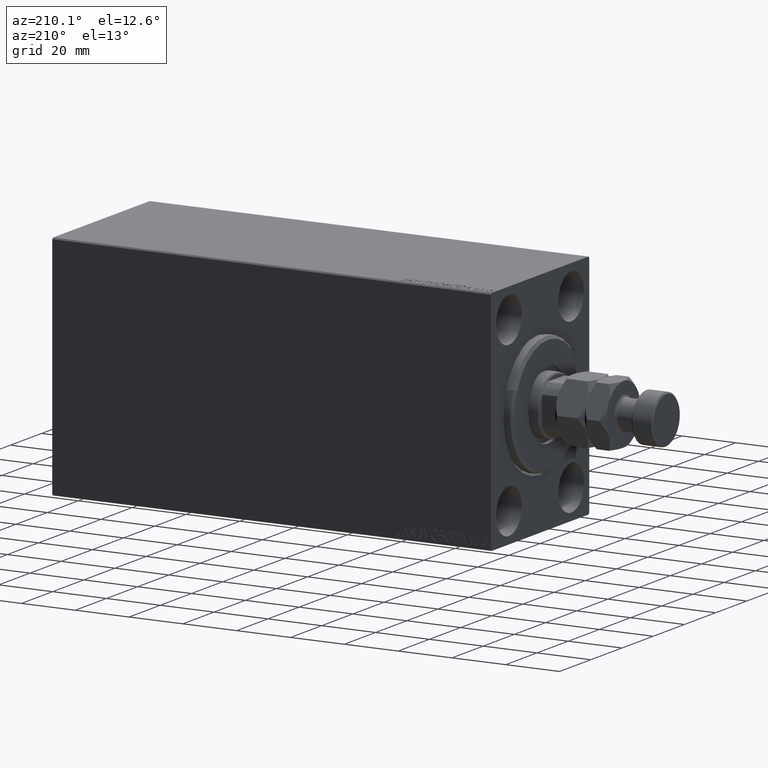
[diagram: clean part render]
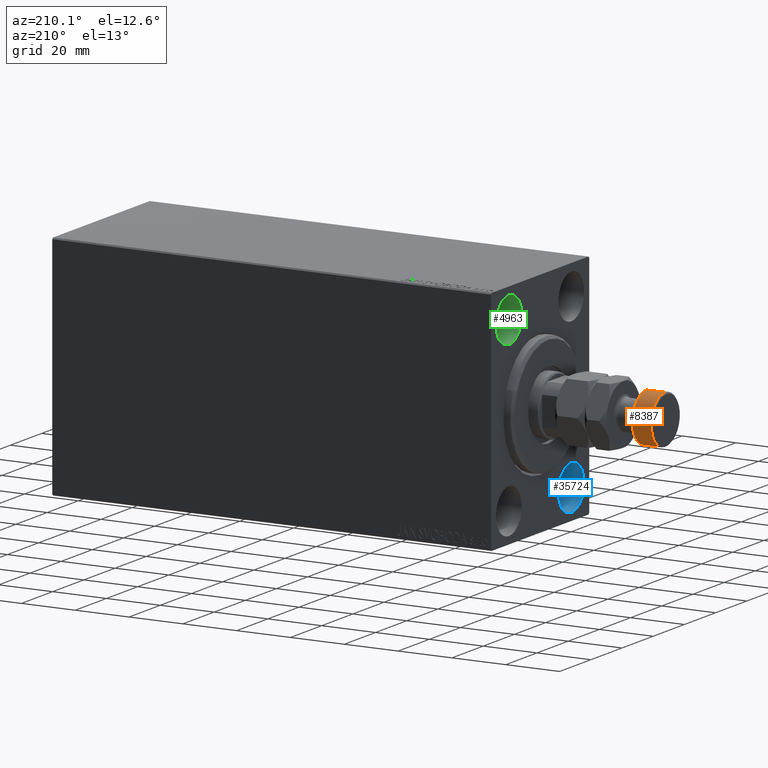
[diagram: same view with three faces highlighted in distinct colors, each labeled with its STEP entity id]
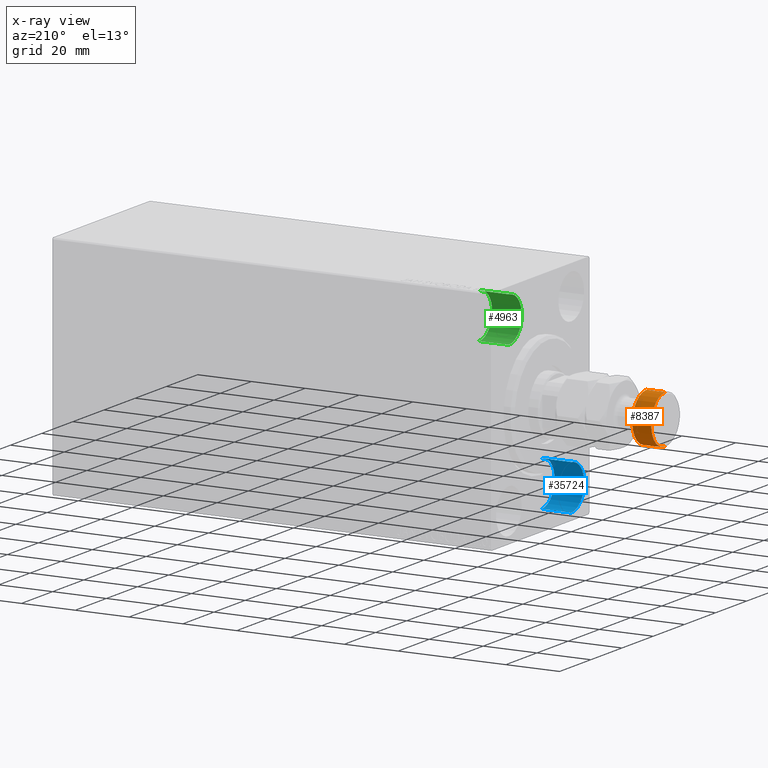
[diagram: x-ray of the same camera — body ghosted, the three highlighted faces saturated]
A machine part, auxiliary view with three faces highlighted in distinct colors.
The next image is the same camera in x-ray (body ghosted, the three faces saturated) — at least one of them is partly hidden behind the body in this view.
Their STEP definitions:

[orange] entity #8387 — the highlighted cylindrical surface (edge-blend (fillet) strip) has radius 9 mm, axis along (1, -0, -0).
#800 = CIRCLE ( 'NONE', #19878, 9.000000000000000000 ) ;
#1603 = DIRECTION ( 'NONE',  ( -0.000000000000000000, -0.000000000000000000, -1.000000000000000000 ) ) ;
#1997 = CARTESIAN_POINT ( 'NONE',  ( -9.000000000000000000, 0.000000000000000000, 27.50000000000000000 ) ) ;
#2049 = FACE_OUTER_BOUND ( 'NONE', #35468, .T. ) ;
#4708 = EDGE_CURVE ( 'NONE', #24727, #10489, #30156, .T. ) ;
#6274 = ORIENTED_EDGE ( 'NONE', *, *, #35397, .T. ) ;
#6362 = CARTESIAN_POINT ( 'NONE',  ( -9.000000000000000000, 0.000000000000000000, 34.49999999999999289 ) ) ;
#8387 = ADVANCED_FACE ( 'NONE', ( #2049 ), #8728, .T. ) ;
#8728 = CYLINDRICAL_SURFACE ( 'NONE', #29221, 9.000000000000000000 ) ;
#10489 = VERTEX_POINT ( 'NONE', #32377 ) ;
#11399 = DIRECTION ( 'NONE',  ( -0.000000000000000000, -0.000000000000000000, -1.000000000000000000 ) ) ;
#13386 = ORIENTED_EDGE ( 'NONE', *, *, #38268, .F. ) ;
#14846 = LINE ( 'NONE', #28640, #22840 ) ;
#16367 = DIRECTION ( 'NONE',  ( -0.000000000000000000, -0.000000000000000000, -1.000000000000000000 ) ) ;
#19819 = CARTESIAN_POINT ( 'NONE',  ( 9.000000000000000000, 1.102182119232617714E-15, 35.00000000000000000 ) ) ;
#19878 = AXIS2_PLACEMENT_3D ( 'NONE', #44526, #44082, #26641 ) ;
#22572 = CARTESIAN_POINT ( 'NONE',  ( 9.000000000000000000, 1.102182119232617714E-15, 34.49999999999999289 ) ) ;
#22840 = VECTOR ( 'NONE', #11399, 1000.000000000000000 ) ;
#23482 = CIRCLE ( 'NONE', #42530, 9.000000000000000000 ) ;
#24727 = VERTEX_POINT ( 'NONE', #22572 ) ;
#25682 = DIRECTION ( 'NONE',  ( 0.000000000000000000, 0.000000000000000000, -1.000000000000000000 ) ) ;
#25713 = CARTESIAN_POINT ( 'NONE',  ( 0.000000000000000000, 0.000000000000000000, 35.00000000000000000 ) ) ;
#25914 = DIRECTION ( 'NONE',  ( 1.000000000000000000, 0.000000000000000000, 0.000000000000000000 ) ) ;
#26641 = DIRECTION ( 'NONE',  ( 1.000000000000000000, 0.000000000000000000, 0.000000000000000000 ) ) ;
#28640 = CARTESIAN_POINT ( 'NONE',  ( -9.000000000000000000, 0.000000000000000000, 35.00000000000000000 ) ) ;
#29221 = AXIS2_PLACEMENT_3D ( 'NONE', #25713, #1603, #32576 ) ;
#30156 = LINE ( 'NONE', #19819, #40078 ) ;
#32377 = CARTESIAN_POINT ( 'NONE',  ( 9.000000000000000000, 1.102182119232617714E-15, 27.50000000000000000 ) ) ;
#32576 = DIRECTION ( 'NONE',  ( -1.000000000000000000, 0.000000000000000000, 0.000000000000000000 ) ) ;
#32730 = ORIENTED_EDGE ( 'NONE', *, *, #4708, .T. ) ;
#33235 = CARTESIAN_POINT ( 'NONE',  ( 0.000000000000000000, 0.000000000000000000, 34.49999999999999289 ) ) ;
#33569 = VERTEX_POINT ( 'NONE', #6362 ) ;
#35397 = EDGE_CURVE ( 'NONE', #33569, #24727, #23482, .T. ) ;
#35468 = EDGE_LOOP ( 'NONE', ( #6274, #32730, #35693, #13386 ) ) ;
#35693 = ORIENTED_EDGE ( 'NONE', *, *, #37022, .T. ) ;
#37022 = EDGE_CURVE ( 'NONE', #10489, #42042, #800, .T. ) ;
#38268 = EDGE_CURVE ( 'NONE', #33569, #42042, #14846, .T. ) ;
#40078 = VECTOR ( 'NONE', #16367, 1000.000000000000000 ) ;
#42042 = VERTEX_POINT ( 'NONE', #1997 ) ;
#42530 = AXIS2_PLACEMENT_3D ( 'NONE', #33235, #25682, #25914 ) ;
#44082 = DIRECTION ( 'NONE',  ( -0.000000000000000000, -0.000000000000000000, 1.000000000000000000 ) ) ;
#44526 = CARTESIAN_POINT ( 'NONE',  ( 0.000000000000000000, 0.000000000000000000, 27.50000000000000000 ) ) ;

[blue] entity #35724 — the highlighted cylindrical surface (edge-blend (fillet) strip) has radius 8.25 mm, axis along (-1, -0, -0).
#1168 = EDGE_CURVE ( 'NONE', #21040, #30786, #1617, .T. ) ;
#1617 = LINE ( 'NONE', #36479, #5525 ) ;
#1655 = EDGE_CURVE ( 'NONE', #26164, #30786, #18755, .T. ) ;
#1971 = CARTESIAN_POINT ( 'NONE',  ( 11.00000000000000000, -20.00000000000000355, -31.49999999999999289 ) ) ;
#2656 = ORIENTED_EDGE ( 'NONE', *, *, #8912, .F. ) ;
#4097 = AXIS2_PLACEMENT_3D ( 'NONE', #22111, #39758, #36082 ) ;
#5525 = VECTOR ( 'NONE', #33053, 1000.000000000000000 ) ;
#6422 = VECTOR ( 'NONE', #17908, 1000.000000000000000 ) ;
#8912 = EDGE_CURVE ( 'NONE', #33906, #21040, #40922, .T. ) ;
#11473 = LINE ( 'NONE', #34888, #6422 ) ;
#13302 = CARTESIAN_POINT ( 'NONE',  ( 0.000000000000000000, -20.00000000000000355, -23.24999999999999289 ) ) ;
#13516 = CARTESIAN_POINT ( 'NONE',  ( 11.00000000000000000, -20.00000000000000355, -31.49999999999999289 ) ) ;
#14626 = CARTESIAN_POINT ( 'NONE',  ( 0.000000000000000000, -20.00000000000000355, -39.74999999999999289 ) ) ;
#15416 = AXIS2_PLACEMENT_3D ( 'NONE', #1971, #37062, #29979 ) ;
#17908 = DIRECTION ( 'NONE',  ( -1.000000000000000000, -0.000000000000000000, -0.000000000000000000 ) ) ;
#18755 = CIRCLE ( 'NONE', #4097, 8.250000000000000000 ) ;
#19851 = CARTESIAN_POINT ( 'NONE',  ( 11.00000000000000000, -20.00000000000000355, -39.74999999999999289 ) ) ;
#20252 = ORIENTED_EDGE ( 'NONE', *, *, #22807, .T. ) ;
#21040 = VERTEX_POINT ( 'NONE', #28491 ) ;
#22111 = CARTESIAN_POINT ( 'NONE',  ( 0.000000000000000000, -20.00000000000000355, -31.49999999999999289 ) ) ;
#22404 = FACE_OUTER_BOUND ( 'NONE', #27892, .T. ) ;
#22807 = EDGE_CURVE ( 'NONE', #33906, #26164, #11473, .T. ) ;
#26164 = VERTEX_POINT ( 'NONE', #14626 ) ;
#26536 = CYLINDRICAL_SURFACE ( 'NONE', #15416, 8.250000000000000000 ) ;
#27312 = DIRECTION ( 'NONE',  ( 0.000000000000000000, 0.000000000000000000, 1.000000000000000000 ) ) ;
#27892 = EDGE_LOOP ( 'NONE', ( #2656, #20252, #36979, #40651 ) ) ;
#28491 = CARTESIAN_POINT ( 'NONE',  ( 11.00000000000000000, -20.00000000000000355, -23.24999999999999289 ) ) ;
#29979 = DIRECTION ( 'NONE',  ( 0.000000000000000000, 0.000000000000000000, 1.000000000000000000 ) ) ;
#30786 = VERTEX_POINT ( 'NONE', #13302 ) ;
#33053 = DIRECTION ( 'NONE',  ( -1.000000000000000000, -0.000000000000000000, -0.000000000000000000 ) ) ;
#33906 = VERTEX_POINT ( 'NONE', #19851 ) ;
#34888 = CARTESIAN_POINT ( 'NONE',  ( 11.00000000000000000, -20.00000000000000355, -39.74999999999999289 ) ) ;
#35724 = ADVANCED_FACE ( 'NONE', ( #22404 ), #26536, .F. ) ;
#36082 = DIRECTION ( 'NONE',  ( 0.000000000000000000, 0.000000000000000000, 1.000000000000000000 ) ) ;
#36479 = CARTESIAN_POINT ( 'NONE',  ( 11.00000000000000000, -20.00000000000000355, -23.24999999999999289 ) ) ;
#36979 = ORIENTED_EDGE ( 'NONE', *, *, #1655, .T. ) ;
#37062 = DIRECTION ( 'NONE',  ( -1.000000000000000000, -0.000000000000000000, -0.000000000000000000 ) ) ;
#39758 = DIRECTION ( 'NONE',  ( -1.000000000000000000, 0.000000000000000000, 0.000000000000000000 ) ) ;
#40651 = ORIENTED_EDGE ( 'NONE', *, *, #1168, .F. ) ;
#40885 = AXIS2_PLACEMENT_3D ( 'NONE', #13516, #45421, #27312 ) ;
#40922 = CIRCLE ( 'NONE', #40885, 8.250000000000000000 ) ;
#45421 = DIRECTION ( 'NONE',  ( -1.000000000000000000, 0.000000000000000000, 0.000000000000000000 ) ) ;

[green] entity #4963 — the highlighted cylindrical surface (edge-blend (fillet) strip) has radius 8.25 mm, axis along (-1, -0, -0).
#723 = DIRECTION ( 'NONE',  ( 0.000000000000000000, 0.000000000000000000, 1.000000000000000000 ) ) ;
#889 = CIRCLE ( 'NONE', #15549, 8.249999999999992895 ) ;
#2414 = CARTESIAN_POINT ( 'NONE',  ( 11.00000000000000000, 20.00000000000000355, 23.25000000000000355 ) ) ;
#2597 = DIRECTION ( 'NONE',  ( -1.000000000000000000, -0.000000000000000000, -0.000000000000000000 ) ) ;
#2711 = DIRECTION ( 'NONE',  ( -1.000000000000000000, -0.000000000000000000, -0.000000000000000000 ) ) ;
#2843 = VECTOR ( 'NONE', #2597, 1000.000000000000000 ) ;
#3938 = CARTESIAN_POINT ( 'NONE',  ( 11.00000000000000000, 20.00000000000000355, 31.50000000000000000 ) ) ;
#4963 = ADVANCED_FACE ( 'NONE', ( #10830 ), #7621, .F. ) ;
#5510 = CARTESIAN_POINT ( 'NONE',  ( 0.000000000000000000, 20.00000000000000355, 31.50000000000000000 ) ) ;
#6256 = VERTEX_POINT ( 'NONE', #40290 ) ;
#7621 = CYLINDRICAL_SURFACE ( 'NONE', #33489, 8.249999999999992895 ) ;
#10830 = FACE_OUTER_BOUND ( 'NONE', #11734, .T. ) ;
#11226 = CARTESIAN_POINT ( 'NONE',  ( 11.00000000000000000, 20.00000000000000355, 39.74999999999999289 ) ) ;
#11734 = EDGE_LOOP ( 'NONE', ( #29473, #44701, #39783, #13144 ) ) ;
#13144 = ORIENTED_EDGE ( 'NONE', *, *, #26487, .F. ) ;
#15549 = AXIS2_PLACEMENT_3D ( 'NONE', #5510, #22267, #36238 ) ;
#16372 = LINE ( 'NONE', #34031, #2843 ) ;
#16908 = VERTEX_POINT ( 'NONE', #17036 ) ;
#17036 = CARTESIAN_POINT ( 'NONE',  ( 0.000000000000000000, 20.00000000000000355, 23.25000000000000355 ) ) ;
#21211 = CIRCLE ( 'NONE', #23415, 8.249999999999992895 ) ;
#22267 = DIRECTION ( 'NONE',  ( -1.000000000000000000, 0.000000000000000000, 0.000000000000000000 ) ) ;
#23415 = AXIS2_PLACEMENT_3D ( 'NONE', #29867, #32845, #33517 ) ;
#26062 = EDGE_CURVE ( 'NONE', #32218, #16908, #33922, .T. ) ;
#26487 = EDGE_CURVE ( 'NONE', #37921, #6256, #16372, .T. ) ;
#29473 = ORIENTED_EDGE ( 'NONE', *, *, #32773, .F. ) ;
#29867 = CARTESIAN_POINT ( 'NONE',  ( 11.00000000000000000, 20.00000000000000355, 31.50000000000000000 ) ) ;
#31941 = DIRECTION ( 'NONE',  ( -1.000000000000000000, -0.000000000000000000, -0.000000000000000000 ) ) ;
#32218 = VERTEX_POINT ( 'NONE', #2414 ) ;
#32773 = EDGE_CURVE ( 'NONE', #32218, #37921, #21211, .T. ) ;
#32845 = DIRECTION ( 'NONE',  ( -1.000000000000000000, 0.000000000000000000, 0.000000000000000000 ) ) ;
#33489 = AXIS2_PLACEMENT_3D ( 'NONE', #3938, #31941, #723 ) ;
#33517 = DIRECTION ( 'NONE',  ( 0.000000000000000000, 0.000000000000000000, 1.000000000000000000 ) ) ;
#33922 = LINE ( 'NONE', #44041, #40933 ) ;
#34031 = CARTESIAN_POINT ( 'NONE',  ( 11.00000000000000000, 20.00000000000000355, 39.74999999999999289 ) ) ;
#36238 = DIRECTION ( 'NONE',  ( 0.000000000000000000, 0.000000000000000000, 1.000000000000000000 ) ) ;
#37921 = VERTEX_POINT ( 'NONE', #11226 ) ;
#39783 = ORIENTED_EDGE ( 'NONE', *, *, #40494, .T. ) ;
#40290 = CARTESIAN_POINT ( 'NONE',  ( 0.000000000000000000, 20.00000000000000355, 39.74999999999999289 ) ) ;
#40494 = EDGE_CURVE ( 'NONE', #16908, #6256, #889, .T. ) ;
#40933 = VECTOR ( 'NONE', #2711, 1000.000000000000000 ) ;
#44041 = CARTESIAN_POINT ( 'NONE',  ( 11.00000000000000000, 20.00000000000000355, 23.25000000000000355 ) ) ;
#44701 = ORIENTED_EDGE ( 'NONE', *, *, #26062, .T. ) ;